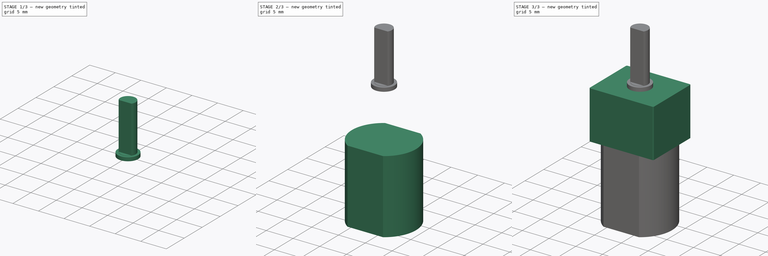
[diagram: build sequence overview — one tinted view per stage of 3, left to right]
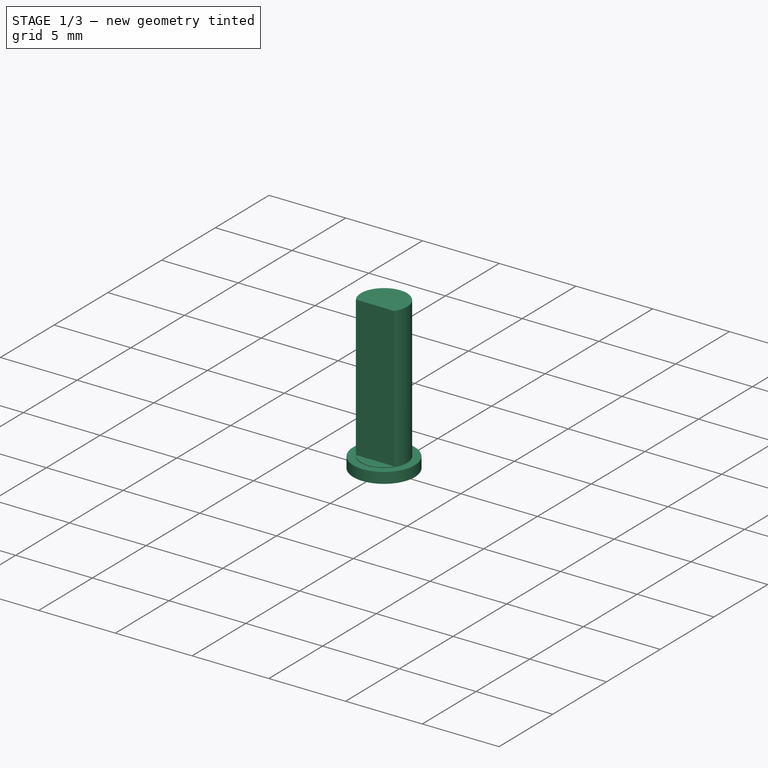
[diagram: stage 1 of 3 — iso view after this stage's code; geometry added in this stage tinted green]
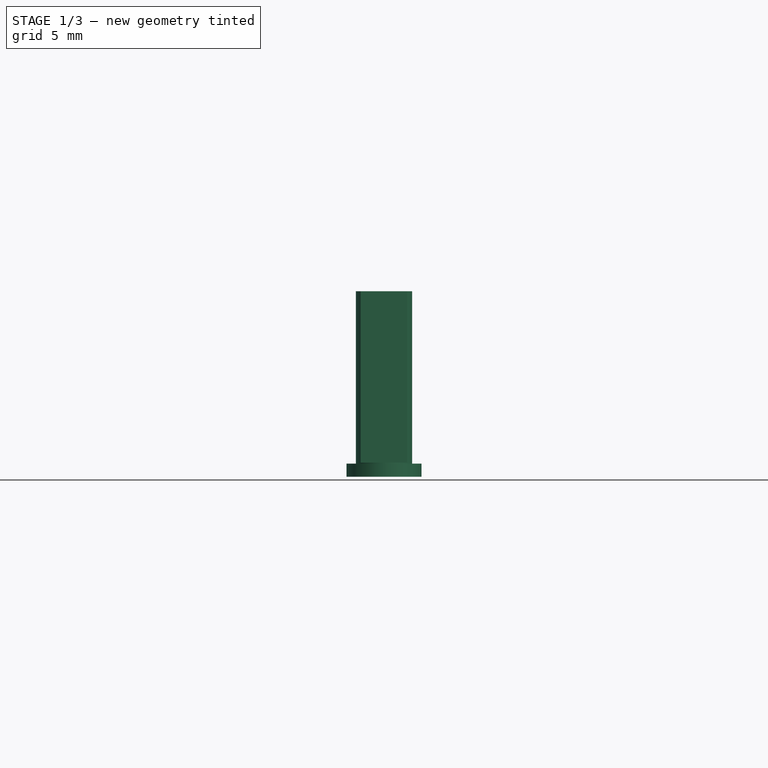
[diagram: stage 1 of 3 — front view after this stage's code; geometry added in this stage tinted green]
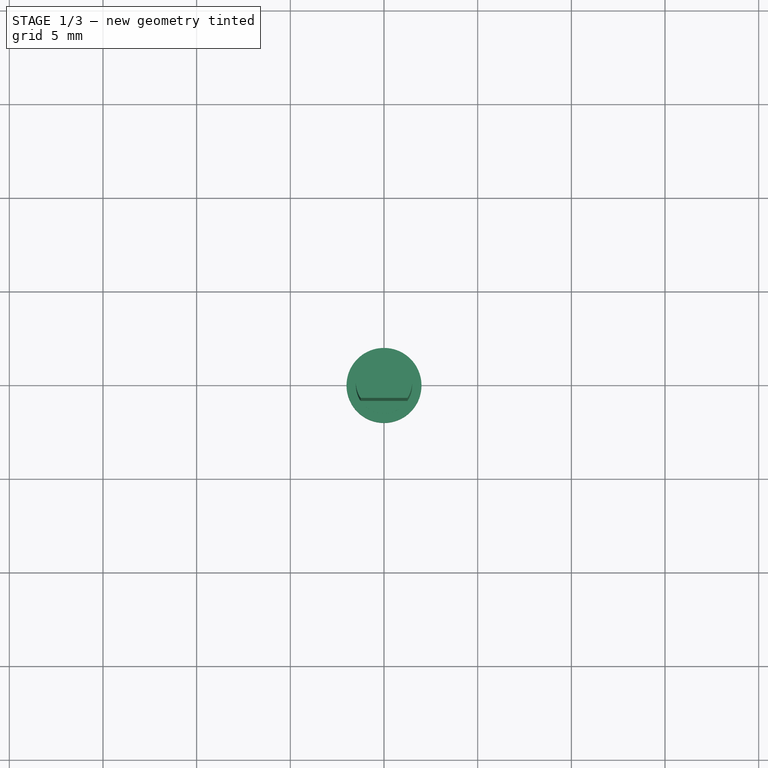
[diagram: stage 1 of 3 — top view after this stage's code; geometry added in this stage tinted green]
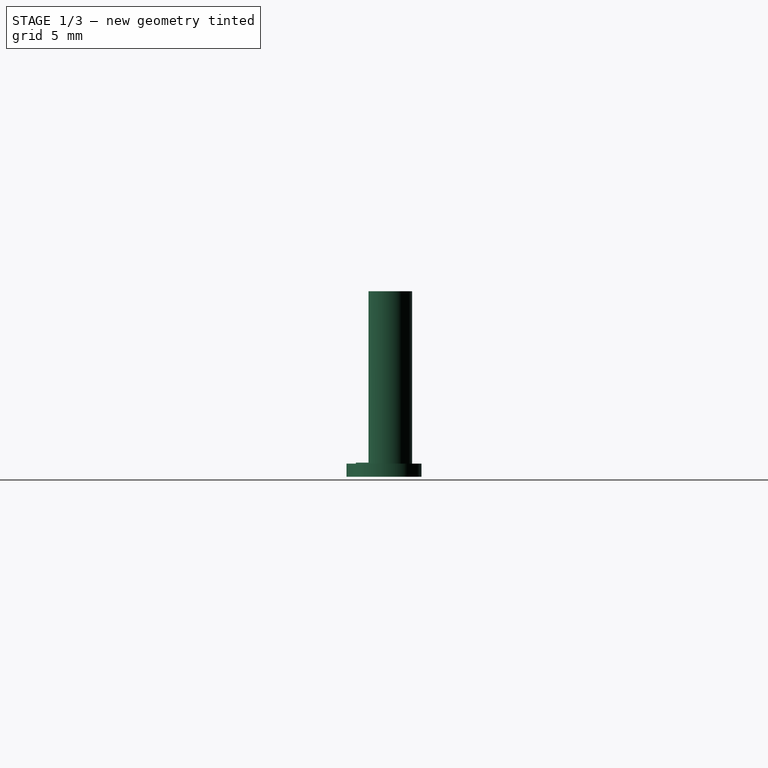
[diagram: stage 1 of 3 — right view after this stage's code; geometry added in this stage tinted green]
FCSTD DOCUMENT  (FreeCAD 0.16R6018 (Git))
Label: Pololu-298_1-6V
License: All rights reserved
LicenseURL: http://en.wikipedia.org/wiki/All_rights_reserved
objects: Sketcher::SketchObject×5, PartDesign::Revolution×2, PartDesign::Pocket×2, PartDesign::Pad×1, Part::MultiFuse×1
note: 16 computed .brp shape members not serialized (recipe doc carries the construction recipe); baked Part::Feature solids carry a one-line shape summary decoded from their .brp

FEATURE [Sketcher::SketchObject] Sketch002  label="Axe"
  Placement = pos=(0,0,0) rot=(-1,0,0;4.71239rad)
  sketch-geometry (6):
    g0: LineSegment StartX=0 StartY=9.2 StartZ=0 EndX=1.5 EndY=9.2 EndZ=0
    g1: LineSegment StartX=2 StartY=0 StartZ=0 EndX=2 EndY=-0.7 EndZ=0
    g2: LineSegment StartX=2 StartY=-0.7 StartZ=0 EndX=0 EndY=-0.7 EndZ=0
    g3: LineSegment StartX=0 StartY=-0.7 StartZ=0 EndX=0 EndY=9.2 EndZ=0
    g4: LineSegment StartX=2 StartY=0 StartZ=0 EndX=1.5 EndY=0 EndZ=0
    g5: LineSegment StartX=1.5 StartY=0 StartZ=0 EndX=1.5 EndY=9.2 EndZ=0
  constraints (18):
    c: Coincident(g1,g2)
    c: Coincident(g2,g3)
    c: Coincident(g3,g0)
    c: Horizontal(g0)
    c: Horizontal(g2)
    c: Vertical(g1)
    c: Vertical(g3)
    c: PointOnObject(g0,g-2)
    c: Coincident(g1,g4)
    c: Horizontal(g4)
    c: Coincident(g4,g5)
    c: Vertical(g5)
    c: Coincident(g0,g5)
    c: PointOnObject(g1,g-1)
    c: DistanceY(g1) = -0.7
    c: DistanceX(g1) = 2
    c: DistanceY(g0) = 9.2
    c: DistanceX(g0) = 1.5
FEATURE [PartDesign::Revolution] Revolution001
  Angle = 360
  Axis = (0,0,1)
  Base = (0,0,0)
  Placement = pos=(0,0,0) rot=(-1,0,0;4.71239rad)
  ReferenceAxis = -> Sketch002 [V_Axis]
  Reversed = true
  Sketch = -> Sketch002
FEATURE [Sketcher::SketchObject] Sketch003
  Placement = pos=(0,0,9.2) rot=(0,0,1;3.14159rad)
  Support = -> Revolution001 [Face3]
  sketch-geometry (2):
    g0: ArcOfCircle CenterX=0 CenterY=0 CenterZ=0 NormalX=0 NormalY=0 NormalZ=1 Radius=1.5 StartAngle=0.585686 EndAngle=2.55591
    g1: LineSegment StartX=-1.25 StartY=0.829156 StartZ=0 EndX=1.25 EndY=0.829156 EndZ=0
  constraints (6):
    c: Coincident(g0,g-1)
    c: Radius(g0) = 1.5
    c: Horizontal(g1)
    c: Coincident(g0,g1)
    c: Coincident(g0,g1)
    c: DistanceX(g1) = 2.5
FEATURE [PartDesign::Pocket] Pocket001
  Length = 9.15
  Placement = pos=(0,0,0) rot=(-1,0,0;4.71239rad)
  Sketch = -> Sketch003
  Type = 0
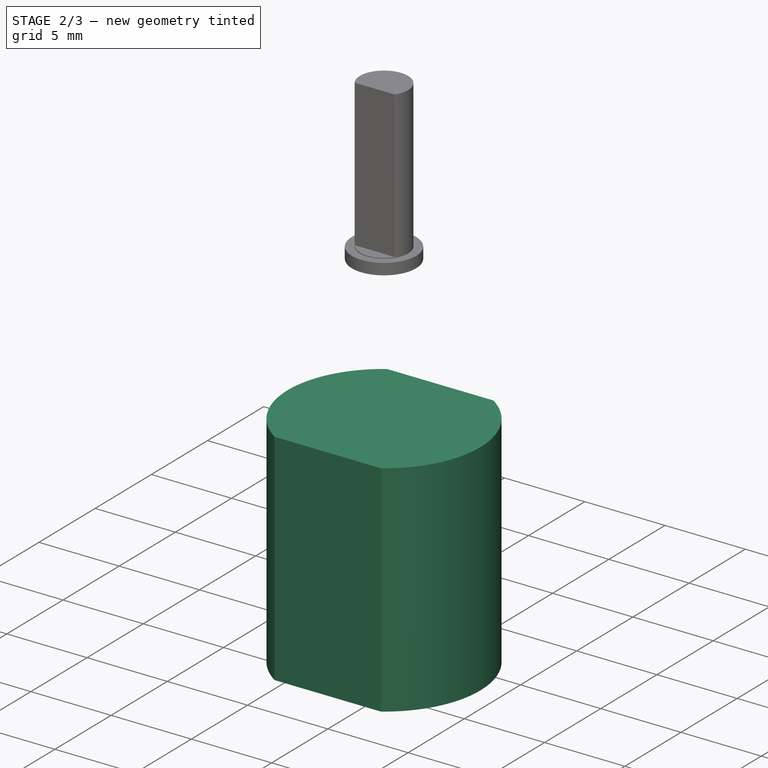
[diagram: stage 2 of 3 — iso view after this stage's code; geometry added in this stage tinted green]
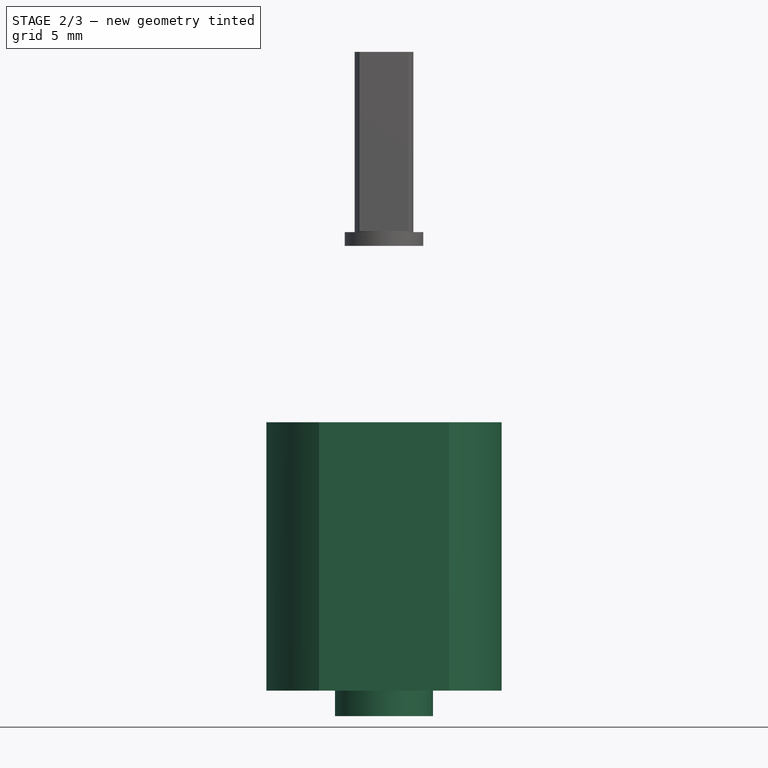
[diagram: stage 2 of 3 — front view after this stage's code; geometry added in this stage tinted green]
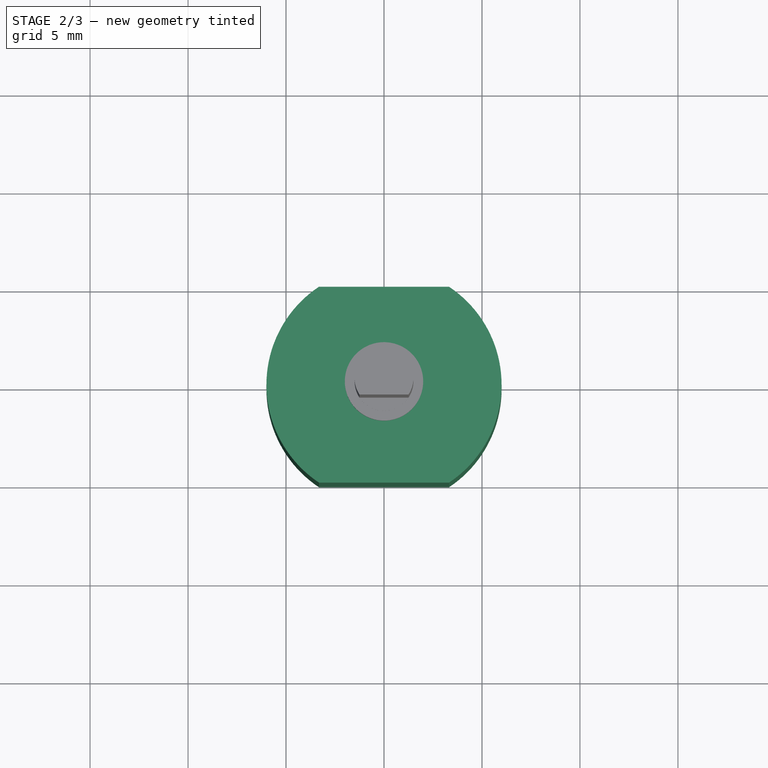
[diagram: stage 2 of 3 — top view after this stage's code; geometry added in this stage tinted green]
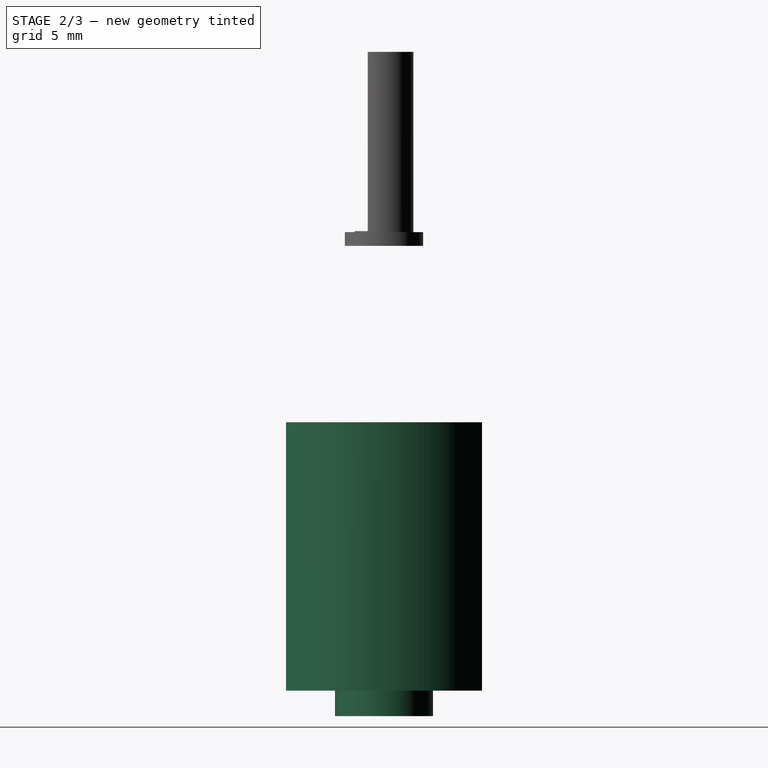
[diagram: stage 2 of 3 — right view after this stage's code; geometry added in this stage tinted green]
FEATURE [Sketcher::SketchObject] Sketch  label="Cylindre-Moteur"
  Placement = pos=(0,0,0) rot=(-1,0,0;4.71239rad)
  sketch-geometry (6):
    g0: LineSegment StartX=0 StartY=-9.7 StartZ=0 EndX=6 EndY=-9.7 EndZ=0
    g1: LineSegment StartX=6 StartY=-9.7 StartZ=0 EndX=6 EndY=-23.4 EndZ=0
    g2: LineSegment StartX=6 StartY=-23.4 StartZ=0 EndX=2.5 EndY=-23.4 EndZ=0
    g3: LineSegment StartX=0 StartY=-24.7 StartZ=0 EndX=0 EndY=-9.7 EndZ=0
    g4: LineSegment StartX=0 StartY=-24.7 StartZ=0 EndX=2.5 EndY=-24.7 EndZ=0
    g5: LineSegment StartX=2.5 StartY=-24.7 StartZ=0 EndX=2.5 EndY=-23.4 EndZ=0
  constraints (18):
    c: Coincident(g0,g1)
    c: Coincident(g1,g2)
    c: Coincident(g3,g0)
    c: Horizontal(g0)
    c: Horizontal(g2)
    c: Vertical(g1)
    c: Vertical(g3)
    c: PointOnObject(g0,g-2)
    c: Coincident(g3,g4)
    c: Horizontal(g4)
    c: Coincident(g4,g5)
    c: Coincident(g5,g2)
    c: Vertical(g5)
    c: DistanceX(g4) = 2.5
    c: DistanceY(g4,g1) = 1.3
    c: DistanceX(g1) = 6
    c: DistanceY(g3) = 15
    c: DistanceY(g0) = -9.7
FEATURE [PartDesign::Revolution] Revolution
  Angle = 360
  Axis = (0,0,1)
  Base = (0,0,0)
  Placement = pos=(0,0,0) rot=(-1,0,0;4.71239rad)
  ReferenceAxis = -> Sketch [V_Axis]
  Reversed = true
  Sketch = -> Sketch
FEATURE [Sketcher::SketchObject] Sketch001  label="Meplat-Moteur"
  Placement = pos=(0,0,-9.7) rot=(0,0,1;3.14159rad)
  Support = -> Revolution [Face1]
  sketch-geometry (4):
    g0: LineSegment StartX=-3.31662 StartY=5 StartZ=0 EndX=3.31662 EndY=5 EndZ=0
    g1: LineSegment StartX=-3.31662 StartY=-5 StartZ=0 EndX=3.31662 EndY=-5 EndZ=0
    g2: ArcOfCircle CenterX=0 CenterY=0 CenterZ=0 NormalX=0 NormalY=0 NormalZ=1 Radius=6 StartAngle=0.985111 EndAngle=2.15648
    g3: ArcOfCircle CenterX=0 CenterY=0 CenterZ=0 NormalX=0 NormalY=0 NormalZ=1 Radius=6 StartAngle=4.1267 EndAngle=5.29807
  constraints (12):
    c: Horizontal(g0)
    c: Horizontal(g1)
    c: Equal(g1,g0)
    c: DistanceY(g0) = 5
    c: Coincident(g3,g-1)
    c: Coincident(g3,g1)
    c: Coincident(g1,g3)
    c: Coincident(g0,g2)
    c: Coincident(g0,g2)
    c: Equal(g2,g3)
    c: Radius(g2) = 6
    c: Coincident(g2,g-1)
FEATURE [PartDesign::Pocket] Pocket
  Length = 14
  Placement = pos=(0,0,0) rot=(-1,0,0;4.71239rad)
  Sketch = -> Sketch001
  Type = 0
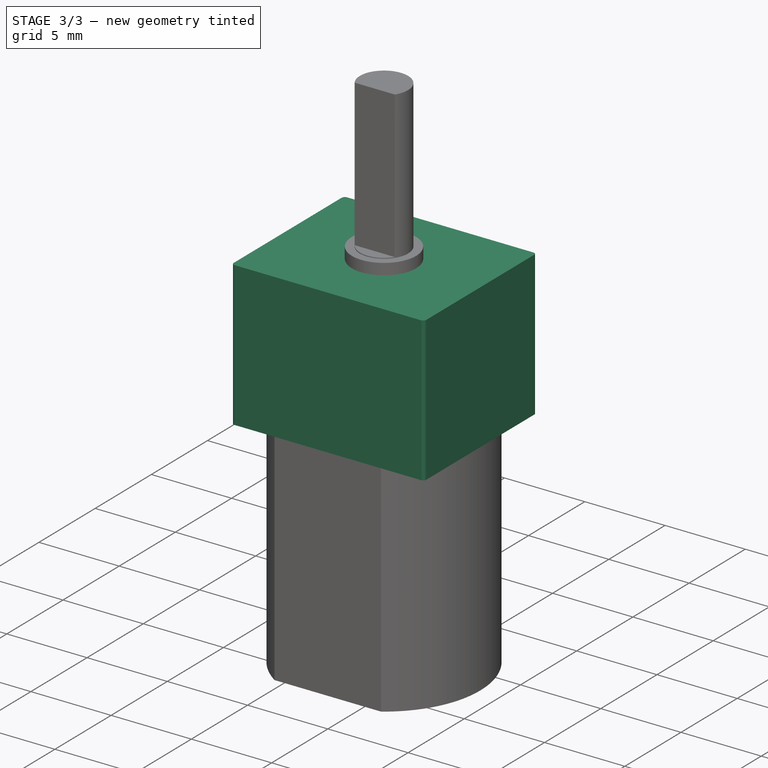
[diagram: stage 3 of 3 — iso view after this stage's code; geometry added in this stage tinted green]
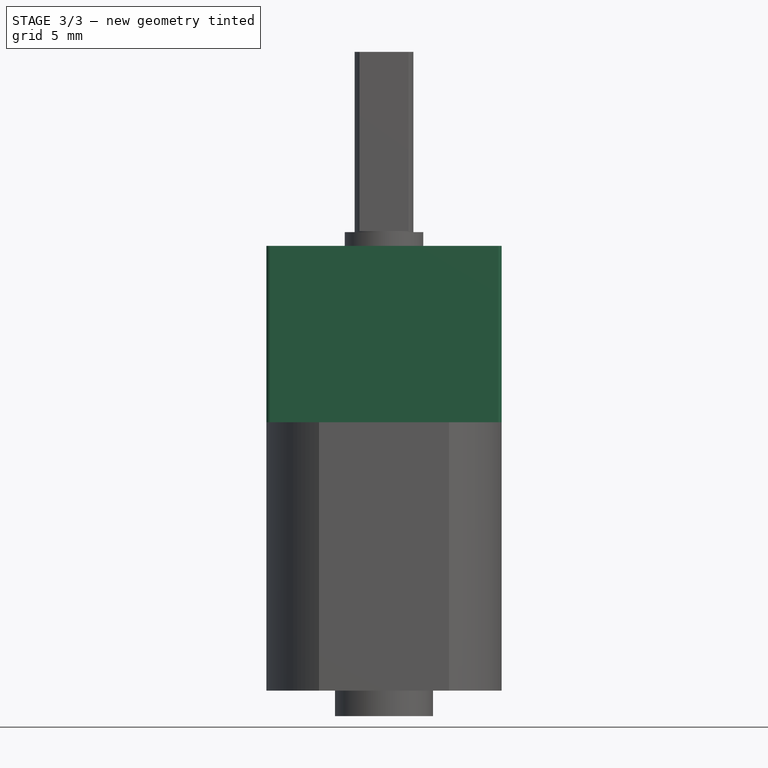
[diagram: stage 3 of 3 — front view after this stage's code; geometry added in this stage tinted green]
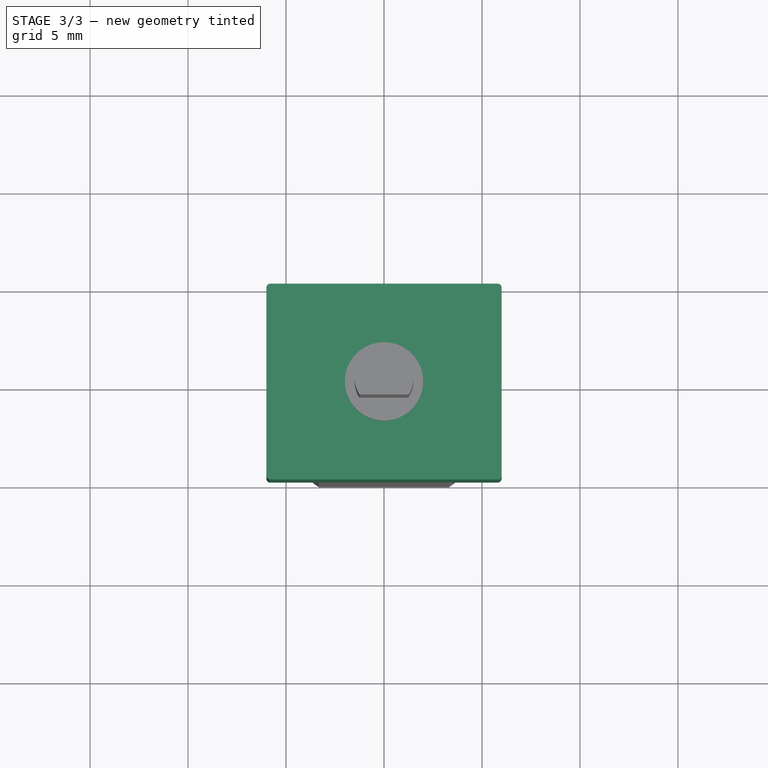
[diagram: stage 3 of 3 — top view after this stage's code; geometry added in this stage tinted green]
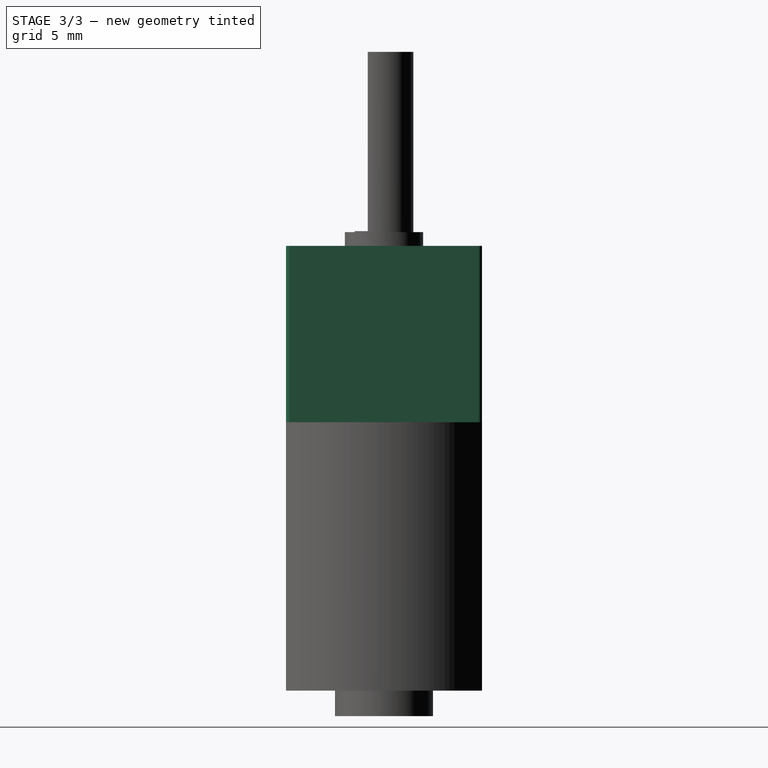
[diagram: stage 3 of 3 — right view after this stage's code; geometry added in this stage tinted green]
FEATURE [Sketcher::SketchObject] Sketch_X001  label="Réducteur"
  Placement = pos=(0,0,-9.7) rot=(0,0,1;3.14159rad)
  Support = -> Pocket [Face1]
  sketch-geometry (8):
    g0: LineSegment StartX=-5.8 StartY=5 StartZ=0 EndX=5.8 EndY=5 EndZ=0
    g1: LineSegment StartX=6 StartY=4.8 StartZ=0 EndX=6 EndY=-4.8 EndZ=0
    g2: LineSegment StartX=5.8 StartY=-5 StartZ=0 EndX=-5.8 EndY=-5 EndZ=0
    g3: LineSegment StartX=-6 StartY=-4.8 StartZ=0 EndX=-6 EndY=4.8 EndZ=0
    g4: ArcOfCircle CenterX=5.8 CenterY=4.8 CenterZ=0 NormalX=0 NormalY=0 NormalZ=1 Radius=0.2 StartAngle=0 EndAngle=1.5708
    g5: ArcOfCircle CenterX=5.8 CenterY=-4.8 CenterZ=0 NormalX=0 NormalY=0 NormalZ=1 Radius=0.2 StartAngle=4.71239 EndAngle=6.28319
    g6: ArcOfCircle CenterX=-5.8 CenterY=-4.8 CenterZ=0 NormalX=0 NormalY=0 NormalZ=1 Radius=0.2 StartAngle=3.14159 EndAngle=4.71239
    g7: ArcOfCircle CenterX=-5.8 CenterY=4.8 CenterZ=0 NormalX=0 NormalY=0 NormalZ=1 Radius=0.2 StartAngle=1.5708 EndAngle=3.14159
  constraints (20):
    c: Horizontal(g0)
    c: Horizontal(g2)
    c: Vertical(g1)
    c: Vertical(g3)
    c: Tangent(g0,g4) = 1.5708
    c: Tangent(g1,g4) = 1.5708
    c: Tangent(g1,g5) = 1.5708
    c: Tangent(g2,g5) = 1.5708
    c: Tangent(g2,g6) = 1.5708
    c: Tangent(g3,g6) = 1.5708
    c: Tangent(g3,g7) = 1.5708
    c: Tangent(g0,g7) = 1.5708
    c: Equal(g4,g7)
    c: Equal(g7,g6)
    c: Equal(g6,g5)
    c: Radius(g4) = 0.2
    c: DistanceX(g3,g1) = 12
    c: DistanceY(g0,g2) = -10
    c: DistanceX(g1) = 6
    c: DistanceY(g0) = 5
FEATURE [PartDesign::Pad] Pad
  Length = 9
  Length2 = 100
  Placement = pos=(0,0,0) rot=(-1,0,0;4.71239rad)
  Sketch = -> Sketch_X001
  Type = 0
FEATURE [Part::MultiFuse] Fusion
  Shapes = -> [Pocket001,Pad]
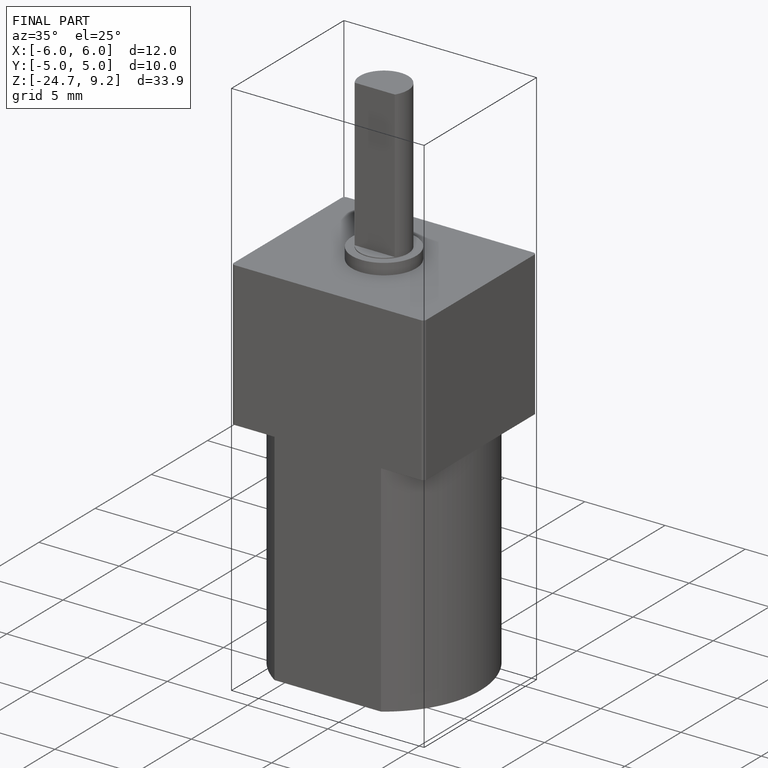
[diagram: finished part — iso view with bounding-box wireframe]
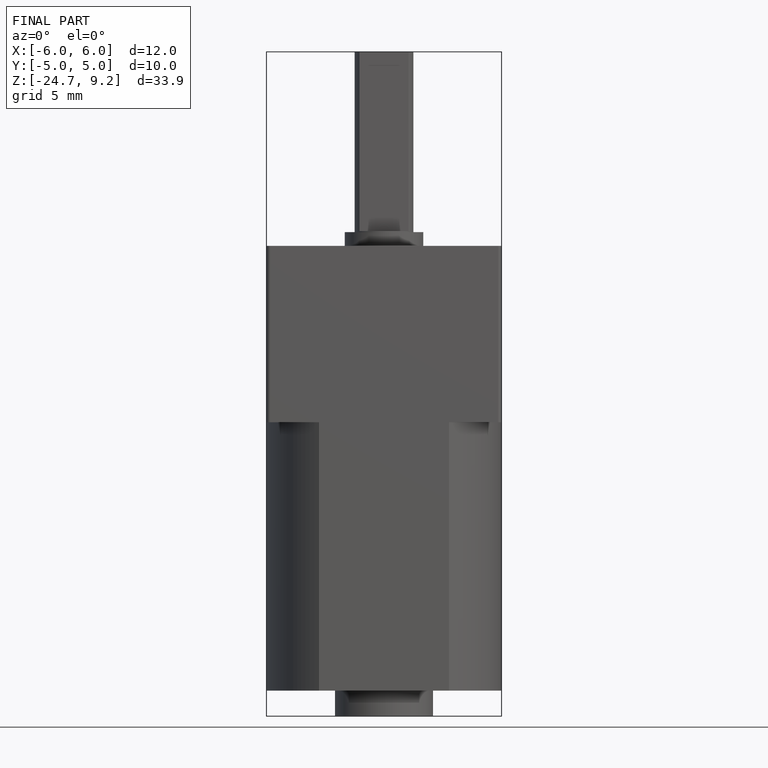
[diagram: finished part — front view with bounding-box wireframe]
